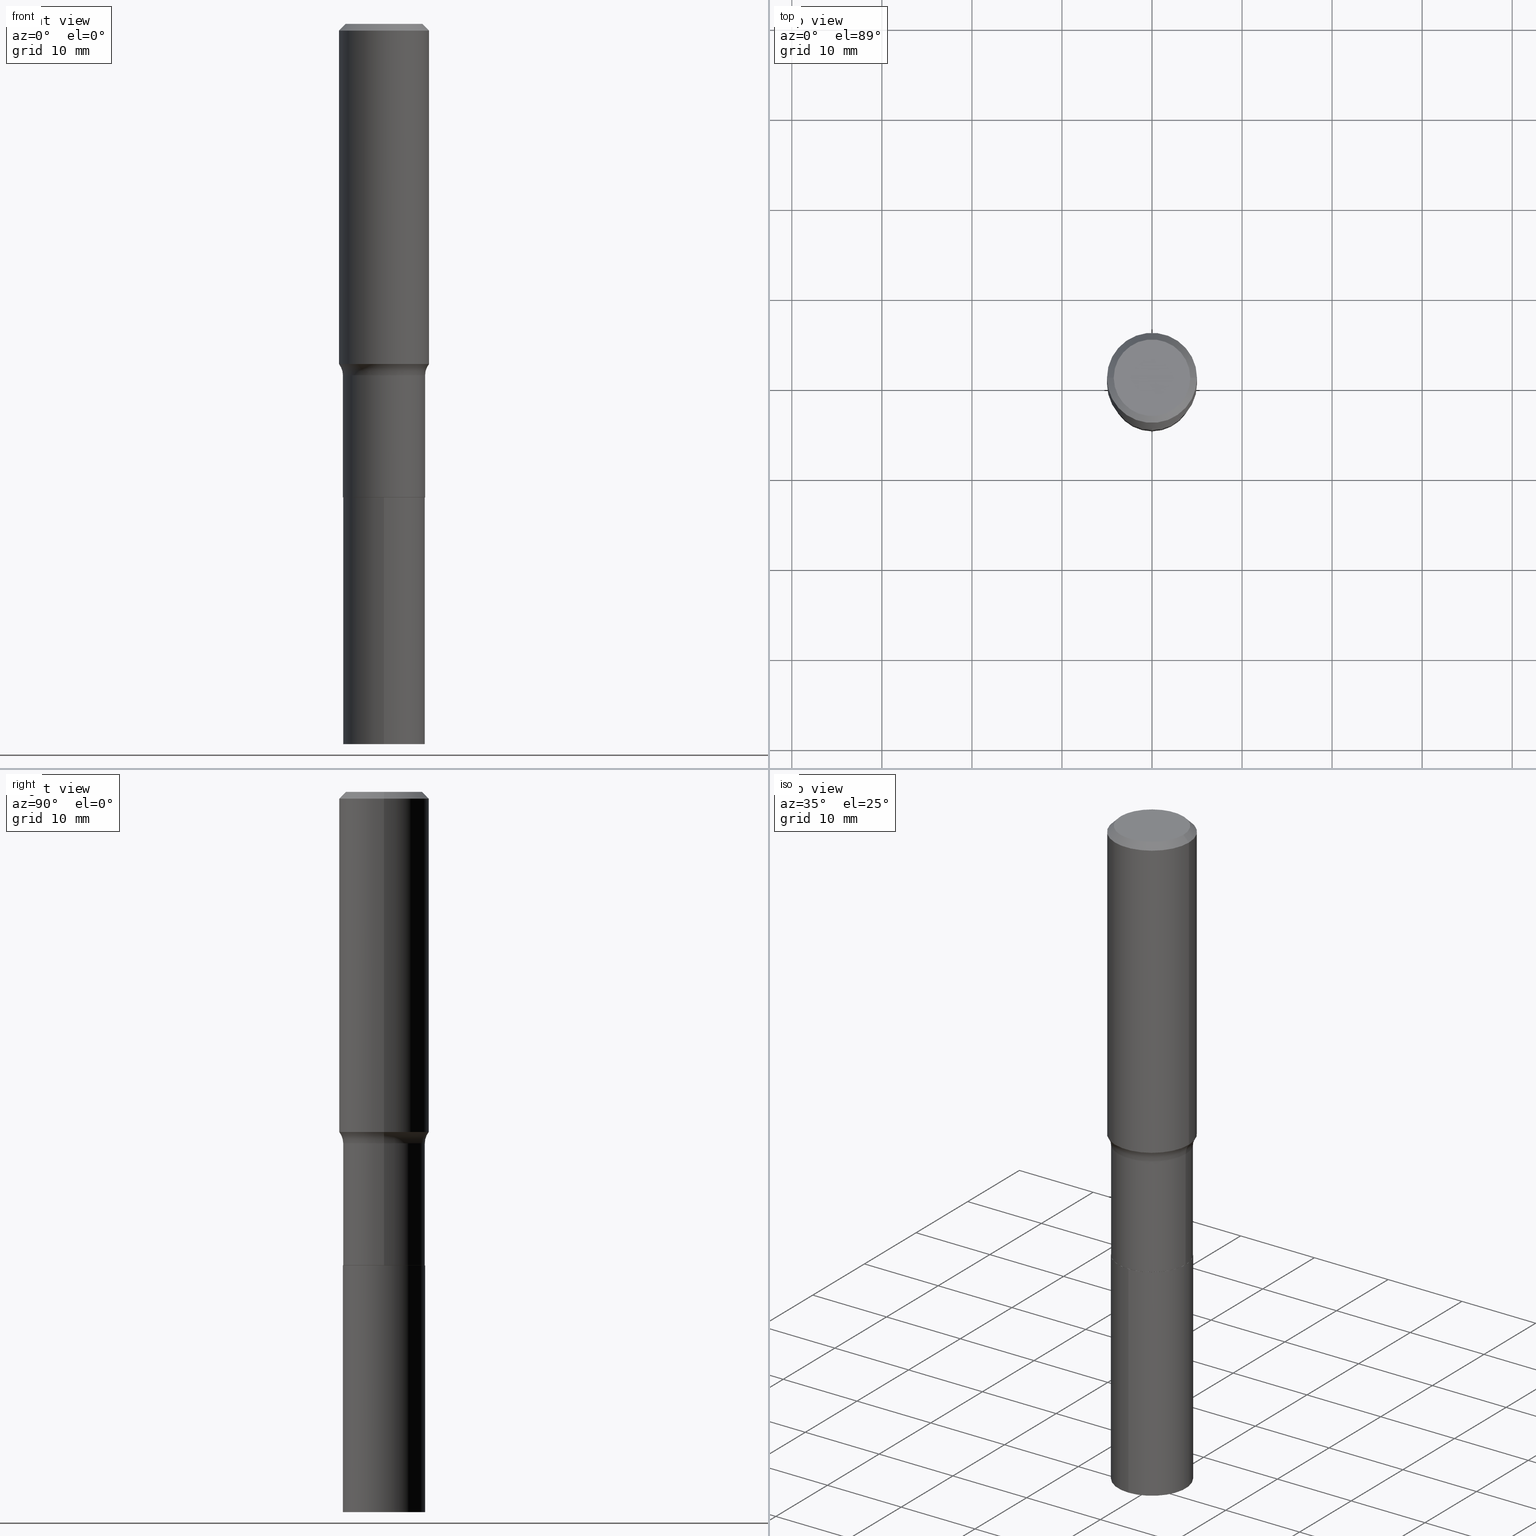
[diagram: canonical four-view strip — front | top / right | iso, engineering-drawing reading convention]
A machine part, canonical four-view strip (front | top / right | iso — engineering-drawing reading convention). The complete STEP part file that produces these views, byte-faithful:
ISO-10303-21;
HEADER;
FILE_DESCRIPTION (( 'STEP AP203' ),
    '1' );
FILE_NAME ('58833.STEP',
    '2024-04-19T14:44:11',
    ( '' ),
    ( '' ),
    'SwSTEP 2.0',
    'SolidWorks 2023',
    '' );
FILE_SCHEMA (( 'CONFIG_CONTROL_DESIGN' ));
ENDSEC;

DATA;
#1 = ORIENTED_EDGE ( 'NONE', *, *, #279, .F. ) ;
#2 = ORIENTED_EDGE ( 'NONE', *, *, #310, .T. ) ;
#3 = DIRECTION ( 'NONE',  ( 1.000000000000000000, -6.982962677686264344E-15, 0.000000000000000000 ) ) ;
#4 = EDGE_CURVE ( 'NONE', #69, #404, #242, .T. ) ;
#5 = AXIS2_PLACEMENT_3D ( 'NONE', #443, #333, #18 ) ;
#6 = AXIS2_PLACEMENT_3D ( 'NONE', #366, #77, #108 ) ;
#7 = CARTESIAN_POINT ( 'NONE',  ( 5.062364975683851674E-29, -7.227715519539197010E-15, -2.070100000000000051 ) ) ;
#8 = DATE_AND_TIME ( #332, #363 ) ;
#9 = DIRECTION ( 'NONE',  ( -2.445468806185136597E-29, 3.491481338843145583E-15, 1.000000000000000000 ) ) ;
#10 = ADVANCED_FACE ( 'NONE', ( #228 ), #344, .T. ) ;
#11 = CARTESIAN_POINT ( 'NONE',  ( 5.063587710086944476E-29, -7.229461260208617724E-15, -2.070600000000000218 ) ) ;
#12 = ORIENTED_EDGE ( 'NONE', *, *, #375, .T. ) ;
#13 = AXIS2_PLACEMENT_3D ( 'NONE', #74, #295, #326 ) ;
#14 = DIRECTION ( 'NONE',  ( -0.7071067811865957564, 7.493145998870527710E-15, 0.7071067811864992780 ) ) ;
#15 = DIRECTION ( 'NONE',  ( 1.000000000000000000, -6.982962677686264344E-15, 0.000000000000000000 ) ) ;
#16 = DIRECTION ( 'NONE',  ( -2.445468806185136877E-29, 3.491481338843145188E-15, 1.000000000000000000 ) ) ;
#17 = LINE ( 'NONE', #369, #177 ) ;
#18 = DIRECTION ( 'NONE',  ( 1.000000000000000000, -6.982962677686266711E-15, 0.000000000000000000 ) ) ;
#19 = CC_DESIGN_PERSON_AND_ORGANIZATION_ASSIGNMENT ( #173, #211, ( #121 ) ) ;
#20 = DIRECTION ( 'NONE',  ( 1.000000000000000000, -6.982962677686262766E-15, 0.000000000000000000 ) ) ;
#21 =( CONVERSION_BASED_UNIT ( 'INCH', #164 ) LENGTH_UNIT ( ) NAMED_UNIT ( #406 ) );
#22 = CYLINDRICAL_SURFACE ( 'NONE', #47, 0.1796999999999999431 ) ;
#23 = DIRECTION ( 'NONE',  ( -1.000000000000000000, 6.982962677686265922E-15, 0.000000000000000000 ) ) ;
#24 = VERTEX_POINT ( 'NONE', #201 ) ;
#25 = CIRCLE ( 'NONE', #244, 0.1796999999999999986 ) ;
#26 = LOCAL_TIME ( 10, 44, 11.00000000000000000, #422 ) ;
#27 = DIRECTION ( 'NONE',  ( -1.000000000000000000, 6.982962677686265922E-15, -4.876176775795935793E-29 ) ) ;
#28 = ADVANCED_FACE ( 'NONE', ( #52 ), #358, .T. ) ;
#29 = COORDINATED_UNIVERSAL_TIME_OFFSET ( 5, 0, .BEHIND. ) ;
#30 = ORIENTED_EDGE ( 'NONE', *, *, #451, .F. ) ;
#31 = APPROVAL ( #419, 'UNSPECIFIED' ) ;
#32 = DATE_TIME_ROLE ( 'creation_date' ) ;
#33 = DIRECTION ( 'NONE',  ( -2.445468806185136597E-29, 3.491481338843145583E-15, 1.000000000000000000 ) ) ;
#34 = AXIS2_PLACEMENT_3D ( 'NONE', #349, #169, #459 ) ;
#35 = VECTOR ( 'NONE', #416, 39.37007874015748854 ) ;
#36 = ORIENTED_EDGE ( 'NONE', *, *, #320, .F. ) ;
#37 = MANIFOLD_SOLID_BREP ( 'Body-Move/Copy2[1]', #450 ) ;
#38 = VERTEX_POINT ( 'NONE', #92 ) ;
#39 = ORIENTED_EDGE ( 'NONE', *, *, #167, .T. ) ;
#40 = CLOSED_SHELL ( 'NONE', ( #271, #453, #175, #307, #87, #82, #439, #424, #28, #41, #343, #10 ) ) ;
#41 = ADVANCED_FACE ( 'NONE', ( #266 ), #85, .F. ) ;
#42 = EDGE_CURVE ( 'NONE', #263, #128, #323, .T. ) ;
#43 = PLANE ( 'NONE',  #63 ) ;
#44 = DATE_TIME_ROLE ( 'classification_date' ) ;
#45 = LINE ( 'NONE', #337, #336 ) ;
#46 = ORIENTED_EDGE ( 'NONE', *, *, #163, .F. ) ;
#47 = AXIS2_PLACEMENT_3D ( 'NONE', #457, #127, #140 ) ;
#48 = LINE ( 'NONE', #257, #168 ) ;
#49 = AXIS2_PLACEMENT_3D ( 'NONE', #193, #331, #300 ) ;
#50 = CARTESIAN_POINT ( 'NONE',  ( 5.063587710086944476E-29, -7.229461260208617724E-15, -2.070600000000000218 ) ) ;
#51 = CARTESIAN_POINT ( 'NONE',  ( -0.1968500000000001082, 1.398703375343757985E-15, -9.682923725166787881E-30 ) ) ;
#52 = FACE_OUTER_BOUND ( 'NONE', #360, .T. ) ;
#53 = COORDINATED_UNIVERSAL_TIME_OFFSET ( 5, 0, .BEHIND. ) ;
#54 = CC_DESIGN_PERSON_AND_ORGANIZATION_ASSIGNMENT ( #355, #130, ( #345 ) ) ;
#55 = EDGE_CURVE ( 'NONE', #24, #263, #465, .T. ) ;
#56 = FACE_OUTER_BOUND ( 'NONE', #73, .T. ) ;
#57 = AXIS2_PLACEMENT_3D ( 'NONE', #219, #145, #438 ) ;
#58 = ORIENTED_EDGE ( 'NONE', *, *, #55, .F. ) ;
#59 =( LENGTH_UNIT ( ) NAMED_UNIT ( * ) SI_UNIT ( $, .METRE. ) );
#60 = ORIENTED_EDGE ( 'NONE', *, *, #279, .T. ) ;
#61 = DIRECTION ( 'NONE',  ( -2.445468806185136597E-29, 3.491481338843145583E-15, 1.000000000000000000 ) ) ;
#62 = ORIENTED_EDGE ( 'NONE', *, *, #88, .F. ) ;
#63 = AXIS2_PLACEMENT_3D ( 'NONE', #377, #227, #80 ) ;
#64 = CARTESIAN_POINT ( 'NONE',  ( -0.1796999999999999431, 1.276845296160899630E-15, -8.839326357188062782E-30 ) ) ;
#65 = APPROVAL_STATUS ( 'not_yet_approved' ) ;
#66 = PERSON_AND_ORGANIZATION_ROLE ( 'design_supplier' ) ;
#67 = VERTEX_POINT ( 'NONE', #250 ) ;
#68 = DIRECTION ( 'NONE',  ( -2.444718884993941855E-29, 3.492555268671800180E-15, 1.000000000000000000 ) ) ;
#69 = VERTEX_POINT ( 'NONE', #391 ) ;
#70 = FACE_OUTER_BOUND ( 'NONE', #204, .T. ) ;
#71 = ORIENTED_EDGE ( 'NONE', *, *, #365, .T. ) ;
#72 = CARTESIAN_POINT ( 'NONE',  ( 3.757951914464700156E-29, -5.365359373400262850E-15, -1.536700000000000399 ) ) ;
#73 = EDGE_LOOP ( 'NONE', ( #371, #415, #427, #30 ) ) ;
#74 = CARTESIAN_POINT ( 'NONE',  ( -0.2596999999999999864, -3.520079888631283158E-15, -1.536700000000000399 ) ) ;
#75 = CIRCLE ( 'NONE', #134, 0.07999999999999996003 ) ;
#76 = VECTOR ( 'NONE', #229, 39.37007874015748143 ) ;
#77 = DIRECTION ( 'NONE',  ( -2.445468806185136597E-29, 3.491481338843145583E-15, 1.000000000000000000 ) ) ;
#78 = DIRECTION ( 'NONE',  ( -6.982962677686266711E-15, -1.000000000000000000, 3.491481338843145583E-15 ) ) ;
#79 = DIRECTION ( 'NONE',  ( 1.000000000000000000, -6.982962677686266711E-15, 4.876176775795935793E-29 ) ) ;
#80 = DIRECTION ( 'NONE',  ( 6.982962677686265922E-15, 1.000000000000000000, -3.492555268671800180E-15 ) ) ;
#81 = DIRECTION ( 'NONE',  ( 1.000000000000000000, -6.982962677686267499E-15, 4.876294436782262290E-29 ) ) ;
#82 = ADVANCED_FACE ( 'NONE', ( #70 ), #22, .T. ) ;
#83 = DIRECTION ( 'NONE',  ( -2.445468806185136597E-29, 3.491481338843145583E-15, 1.000000000000000000 ) ) ;
#84 = CARTESIAN_POINT ( 'NONE',  ( 5.063587710086944476E-29, -7.229461260208617724E-15, -2.070600000000000218 ) ) ;
#85 = PLANE ( 'NONE',  #425 ) ;
#86 = CONICAL_SURFACE ( 'NONE', #91, 0.1968500000000000250, 0.7853981633974456145 ) ;
#87 = ADVANCED_FACE ( 'NONE', ( #329 ), #183, .T. ) ;
#88 = EDGE_CURVE ( 'NONE', #133, #24, #147, .T. ) ;
#89 =( NAMED_UNIT ( * ) PLANE_ANGLE_UNIT ( ) SI_UNIT ( $, .RADIAN. ) );
#90 = AXIS2_PLACEMENT_3D ( 'NONE', #421, #351, #206 ) ;
#91 = AXIS2_PLACEMENT_3D ( 'NONE', #347, #449, #23 ) ;
#92 = CARTESIAN_POINT ( 'NONE',  ( -0.1968500000000000250, -1.249116074655707760E-15, -0.02952750000000018207 ) ) ;
#93 = ORIENTED_EDGE ( 'NONE', *, *, #291, .F. ) ;
#94 = ORIENTED_EDGE ( 'NONE', *, *, #296, .T. ) ;
#95 = APPROVAL_ROLE ( '' ) ;
#96 = VERTEX_POINT ( 'NONE', #138 ) ;
#97 = EDGE_CURVE ( 'NONE', #263, #24, #315, .T. ) ;
#98 = VECTOR ( 'NONE', #131, 39.37007874015748143 ) ;
#99 = CIRCLE ( 'NONE', #232, 0.1968500000000000250 ) ;
#100 = PERSON_AND_ORGANIZATION ( #272, #410 ) ;
#101 = EDGE_LOOP ( 'NONE', ( #248, #423, #312, #380 ) ) ;
#102 = CARTESIAN_POINT ( 'NONE',  ( 0.000000000000000000, 0.000000000000000000, 0.000000000000000000 ) ) ;
#103 = ORIENTED_EDGE ( 'NONE', *, *, #172, .F. ) ;
#104 = CC_DESIGN_PERSON_AND_ORGANIZATION_ASSIGNMENT ( #384, #278, ( #285 ) ) ;
#105 = ORIENTED_EDGE ( 'NONE', *, *, #210, .T. ) ;
#106 = ORIENTED_EDGE ( 'NONE', *, *, #97, .T. ) ;
#107 = LINE ( 'NONE', #226, #282 ) ;
#108 = DIRECTION ( 'NONE',  ( 1.000000000000000000, -6.982962677686264344E-15, 0.000000000000000000 ) ) ;
#109 = DIRECTION ( 'NONE',  ( 0.7071067811865957564, -2.468850131082761932E-15, 0.7071067811864992780 ) ) ;
#110 = PRODUCT_DEFINITION_SHAPE ( 'NONE', 'NONE',  #285 ) ;
#111 = APPLICATION_CONTEXT ( 'configuration controlled 3d designs of mechanical parts and assemblies' ) ;
#112 = VECTOR ( 'NONE', #117, 39.37007874015748143 ) ;
#113 = CC_DESIGN_APPROVAL ( #267, ( #345 ) ) ;
#114 = CARTESIAN_POINT ( 'NONE',  ( 0.000000000000000000, 0.000000000000000000, 0.000000000000000000 ) ) ;
#115 = CARTESIAN_POINT ( 'NONE',  ( 5.063587710086944476E-29, -7.229461260208617724E-15, -2.070600000000000218 ) ) ;
#116 = DIRECTION ( 'NONE',  ( 1.000000000000000000, -6.982962677686265922E-15, 4.876176775795935793E-29 ) ) ;
#117 = DIRECTION ( 'NONE',  ( -2.445468806185136877E-29, 3.491481338843145188E-15, 1.000000000000000000 ) ) ;
#118 = CC_DESIGN_DATE_AND_TIME_ASSIGNMENT ( #223, #44, ( #345 ) ) ;
#119 = CARTESIAN_POINT ( 'NONE',  ( -0.1673224999999999851, 1.219954130253505263E-15, 4.096137381439757534E-18 ) ) ;
#120 = CIRCLE ( 'NONE', #382, 0.1796999999999999986 ) ;
#121 = PRODUCT_DEFINITION_FORMATION_WITH_SPECIFIED_SOURCE ( 'ANY', '', #159, .NOT_KNOWN. ) ;
#122 = ADVANCED_FACE ( 'NONE', ( #357 ), #430, .T. ) ;
#123 = EDGE_LOOP ( 'NONE', ( #325, #46 ) ) ;
#124 = AXIS2_PLACEMENT_3D ( 'NONE', #50, #299, #409 ) ;
#125 = AXIS2_PLACEMENT_3D ( 'NONE', #308, #9, #148 ) ;
#126 = VERTEX_POINT ( 'NONE', #190 ) ;
#127 = DIRECTION ( 'NONE',  ( -2.445468806185136597E-29, 3.491481338843145583E-15, 1.000000000000000000 ) ) ;
#128 = VERTEX_POINT ( 'NONE', #297 ) ;
#129 = CC_DESIGN_PERSON_AND_ORGANIZATION_ASSIGNMENT ( #100, #66, ( #121 ) ) ;
#130 = PERSON_AND_ORGANIZATION_ROLE ( 'classification_officer' ) ;
#131 = DIRECTION ( 'NONE',  ( -2.445468806185136877E-29, 3.491481338843145188E-15, 1.000000000000000000 ) ) ;
#132 = CALENDAR_DATE ( 2024, 19, 4 ) ;
#133 = VERTEX_POINT ( 'NONE', #149 ) ;
#134 = AXIS2_PLACEMENT_3D ( 'NONE', #370, #78, #20 ) ;
#135 = DIRECTION ( 'NONE',  ( 1.000000000000000000, -6.982962677686269077E-15, 0.000000000000000000 ) ) ;
#136 = ORIENTED_EDGE ( 'NONE', *, *, #258, .F. ) ;
#137 = CARTESIAN_POINT ( 'NONE',  ( 1.276845296160963528E-15, 0.1796999999999890074, -3.149600000000001288 ) ) ;
#138 = CARTESIAN_POINT ( 'NONE',  ( 0.1796999999999999431, -6.620197766580484580E-15, -1.536700000000000399 ) ) ;
#139 = EDGE_LOOP ( 'NONE', ( #385, #461, #317, #283 ) ) ;
#140 = DIRECTION ( 'NONE',  ( 1.000000000000000000, -6.982962677686265922E-15, 4.876176775795935232E-29 ) ) ;
#141 = DIRECTION ( 'NONE',  ( 1.000000000000000000, -6.982962677686265922E-15, 4.876176775795935232E-29 ) ) ;
#142 = EDGE_LOOP ( 'NONE', ( #389, #241, #105, #136 ) ) ;
#143 = LINE ( 'NONE', #467, #417 ) ;
#144 = CIRCLE ( 'NONE', #13, 0.07999999999999996003 ) ;
#145 = DIRECTION ( 'NONE',  ( -2.445468806185136597E-29, 3.491481338843145583E-15, 1.000000000000000000 ) ) ;
#146 = CC_DESIGN_APPROVAL ( #31, ( #285 ) ) ;
#147 = LINE ( 'NONE', #288, #231 ) ;
#148 = DIRECTION ( 'NONE',  ( 1.000000000000000000, -6.982962677686267499E-15, 4.876294436782262290E-29 ) ) ;
#149 = CARTESIAN_POINT ( 'NONE',  ( 0.1791999999999999982, -8.480808172049995659E-15, -2.070600000000000218 ) ) ;
#150 = CARTESIAN_POINT ( 'NONE',  ( 1.276845296160950511E-15, 0.1796999999999927544, -2.070600000000000662 ) ) ;
#151 = PERSON_AND_ORGANIZATION ( #272, #410 ) ;
#152 = DIRECTION ( 'NONE',  ( -2.444718884993941855E-29, 3.492555268671800180E-15, 1.000000000000000000 ) ) ;
#153 = AXIS2_PLACEMENT_3D ( 'NONE', #11, #152, #265 ) ;
#154 = ORIENTED_EDGE ( 'NONE', *, *, #310, .F. ) ;
#155 = CARTESIAN_POINT ( 'NONE',  ( -0.1796999999999999709, -5.019692150308829314E-15, -2.070100000000000051 ) ) ;
#156 = FACE_OUTER_BOUND ( 'NONE', #139, .T. ) ;
#157 = DIRECTION ( 'NONE',  ( -2.445468806185136597E-29, 3.491481338843145583E-15, 1.000000000000000000 ) ) ;
#158 = CARTESIAN_POINT ( 'NONE',  ( -1.254838393180145014E-15, -0.1797000000000109898, -3.149600000000000399 ) ) ;
#159 = PRODUCT ( '58833', '58833', '', ( #207 ) ) ;
#160 = FACE_OUTER_BOUND ( 'NONE', #252, .T. ) ;
#161 = DESIGN_CONTEXT ( 'detailed design', #111, 'design' ) ;
#162 = CIRCLE ( 'NONE', #379, 0.1791999999999999982 ) ;
#163 = EDGE_CURVE ( 'NONE', #322, #304, #25, .T. ) ;
#164 = LENGTH_MEASURE_WITH_UNIT ( LENGTH_MEASURE( 0.02539999999999999897 ), #59 );
#165 = FACE_OUTER_BOUND ( 'NONE', #356, .T. ) ;
#166 = DIRECTION ( 'NONE',  ( 1.000000000000000000, 0.000000000000000000, 0.000000000000000000 ) ) ;
#167 = EDGE_CURVE ( 'NONE', #304, #322, #455, .T. ) ;
#168 = VECTOR ( 'NONE', #16, 39.37007874015748143 ) ;
#169 = DIRECTION ( 'NONE',  ( -2.445468806185136597E-29, 3.491481338843145583E-15, 1.000000000000000000 ) ) ;
#170 = CARTESIAN_POINT ( 'NONE',  ( -0.1968500000000000250, 1.271501487869850120E-15, -0.02952750000000018207 ) ) ;
#171 = ORIENTED_EDGE ( 'NONE', *, *, #367, .T. ) ;
#172 = EDGE_CURVE ( 'NONE', #128, #96, #293, .T. ) ;
#173 = PERSON_AND_ORGANIZATION ( #272, #410 ) ;
#174 = ORIENTED_EDGE ( 'NONE', *, *, #42, .T. ) ;
#175 = ADVANCED_FACE ( 'NONE', ( #390 ), #400, .T. ) ;
#176 = EDGE_LOOP ( 'NONE', ( #255, #429 ) ) ;
#177 = VECTOR ( 'NONE', #412, 39.37007874015748854 ) ;
#178 = CARTESIAN_POINT ( 'NONE',  ( 7.701439386995408199E-29, -1.099792839510549152E-14, -3.149600000000000843 ) ) ;
#179 = VERTEX_POINT ( 'NONE', #215 ) ;
#180 = ORIENTED_EDGE ( 'NONE', *, *, #212, .T. ) ;
#181 = DIRECTION ( 'NONE',  ( 1.000000000000000000, -6.982962677686264344E-15, 0.000000000000000000 ) ) ;
#182 = EDGE_CURVE ( 'NONE', #179, #128, #144, .T. ) ;
#183 = CYLINDRICAL_SURFACE ( 'NONE', #433, 0.1796999999999999431 ) ;
#184 = MANIFOLD_SOLID_BREP ( 'Body-Move/Copy2[2]', #40 ) ;
#185 = CARTESIAN_POINT ( 'NONE',  ( 5.063587710086944476E-29, -7.229461260208617724E-15, -2.070600000000000218 ) ) ;
#186 = AXIS2_PLACEMENT_3D ( 'NONE', #178, #361, #256 ) ;
#187 = DIRECTION ( 'NONE',  ( -6.982962677686265922E-15, -1.000000000000000000, 3.040454083098790380E-15 ) ) ;
#188 = PRODUCT_RELATED_PRODUCT_CATEGORY ( 'detail', '', ( #159 ) ) ;
#189 = CARTESIAN_POINT ( 'NONE',  ( -1.254838393180171243E-15, -0.1797000000000072428, -2.070599999999999330 ) ) ;
#190 = CARTESIAN_POINT ( 'NONE',  ( 0.1968500000000000250, -1.477690918335233294E-15, -0.02952750000000018207 ) ) ;
#191 = PLANE ( 'NONE',  #49 ) ;
#192 = VERTEX_POINT ( 'NONE', #436 ) ;
#193 = CARTESIAN_POINT ( 'NONE',  ( 1.015213930624361938E-29, -2.057298380494832584E-14, -3.149600000000000843 ) ) ;
#194 = CC_DESIGN_PERSON_AND_ORGANIZATION_ASSIGNMENT ( #311, #269, ( #159 ) ) ;
#195 = CYLINDRICAL_SURFACE ( 'NONE', #153, 0.1796999999999999986 ) ;
#196 = AXIS2_PLACEMENT_3D ( 'NONE', #114, #261, #79 ) ;
#197 = CARTESIAN_POINT ( 'NONE',  ( 5.063587710086944476E-29, -7.229461260208617724E-15, -2.070600000000000218 ) ) ;
#198 = CARTESIAN_POINT ( 'NONE',  ( 0.1968500000000001360, -6.567140387868782202E-15, -1.487203762769277127 ) ) ;
#199 = APPROVAL_DATE_TIME ( #8, #267 ) ;
#200 = FACE_OUTER_BOUND ( 'NONE', #319, .T. ) ;
#201 = CARTESIAN_POINT ( 'NONE',  ( 0.1796999999999999709, -8.482553912719417951E-15, -2.070100000000000051 ) ) ;
#202 = CIRCLE ( 'NONE', #5, 0.1968500000000001915 ) ;
#203 =( GEOMETRIC_REPRESENTATION_CONTEXT ( 3 ) GLOBAL_UNCERTAINTY_ASSIGNED_CONTEXT ( ( #234 ) ) GLOBAL_UNIT_ASSIGNED_CONTEXT ( ( #21, #89, #268 ) ) REPRESENTATION_CONTEXT ( 'NONE', 'WORKASPACE' ) );
#204 = EDGE_LOOP ( 'NONE', ( #466, #106, #290, #103 ) ) ;
#205 = DIRECTION ( 'NONE',  ( 2.445468806185136597E-29, -3.491481338843145583E-15, -1.000000000000000000 ) ) ;
#206 = DIRECTION ( 'NONE',  ( -6.982962677686265922E-15, -1.000000000000000000, 3.040454083098790380E-15 ) ) ;
#207 = MECHANICAL_CONTEXT ( 'NONE', #348, 'mechanical' ) ;
#208 = AXIS2_PLACEMENT_3D ( 'NONE', #7, #432, #217 ) ;
#209 = AXIS2_PLACEMENT_3D ( 'NONE', #298, #83, #340 ) ;
#210 = EDGE_CURVE ( 'NONE', #304, #396, #107, .T. ) ;
#211 = PERSON_AND_ORGANIZATION_ROLE ( 'creator' ) ;
#212 = EDGE_CURVE ( 'NONE', #179, #280, #202, .T. ) ;
#213 = SECURITY_CLASSIFICATION_LEVEL ( 'unclassified' ) ;
#214 = ORIENTED_EDGE ( 'NONE', *, *, #381, .T. ) ;
#215 = CARTESIAN_POINT ( 'NONE',  ( -0.1968500000000001360, -3.793840809422482017E-15, -1.487203762769277127 ) ) ;
#216 = AXIS2_PLACEMENT_3D ( 'NONE', #185, #445, #116 ) ;
#217 = DIRECTION ( 'NONE',  ( 1.000000000000000000, -6.982962677686269077E-15, 0.000000000000000000 ) ) ;
#218 = ORIENTED_EDGE ( 'NONE', *, *, #352, .F. ) ;
#219 = CARTESIAN_POINT ( 'NONE',  ( 0.000000000000000000, 0.000000000000000000, 0.000000000000000000 ) ) ;
#220 = ORIENTED_EDGE ( 'NONE', *, *, #451, .T. ) ;
#221 = FACE_OUTER_BOUND ( 'NONE', #176, .T. ) ;
#222 = ADVANCED_FACE ( 'NONE', ( #160 ), #43, .F. ) ;
#223 = DATE_AND_TIME ( #374, #303 ) ;
#224 = AXIS2_PLACEMENT_3D ( 'NONE', #444, #246, #81 ) ;
#225 = AXIS2_PLACEMENT_3D ( 'NONE', #376, #205, #313 ) ;
#226 = CARTESIAN_POINT ( 'NONE',  ( -1.254838393180171243E-15, -0.1797000000000072428, -2.070599999999999330 ) ) ;
#227 = DIRECTION ( 'NONE',  ( 2.444718884993941295E-29, -3.492555268671800180E-15, -1.000000000000000000 ) ) ;
#228 = FACE_OUTER_BOUND ( 'NONE', #101, .T. ) ;
#229 = DIRECTION ( 'NONE',  ( -2.444718884993941575E-29, 3.492555268671800180E-15, 1.000000000000000000 ) ) ;
#230 = DIRECTION ( 'NONE',  ( -2.445468806185136597E-29, 3.491481338843145583E-15, 1.000000000000000000 ) ) ;
#231 = VECTOR ( 'NONE', #109, 39.37007874015748143 ) ;
#232 = AXIS2_PLACEMENT_3D ( 'NONE', #368, #61, #350 ) ;
#233 = CARTESIAN_POINT ( 'NONE',  ( -5.008488096090108951E-47, 7.150793614331948590E-33, 2.048068690724054183E-18 ) ) ;
#234 = UNCERTAINTY_MEASURE_WITH_UNIT (LENGTH_MEASURE( 1.000000000000000082E-05 ), #21, 'distance_accuracy_value', 'NONE');
#235 = ORIENTED_EDGE ( 'NONE', *, *, #365, .F. ) ;
#236 = CIRCLE ( 'NONE', #124, 0.1791999999999999982 ) ;
#237 = CARTESIAN_POINT ( 'NONE',  ( 0.000000000000000000, 0.000000000000000000, 0.000000000000000000 ) ) ;
#238 = EDGE_CURVE ( 'NONE', #280, #96, #75, .T. ) ;
#239 = DIRECTION ( 'NONE',  ( 1.000000000000000000, -6.982962677686268288E-15, 4.883557194083114022E-29 ) ) ;
#240 = ORIENTED_EDGE ( 'NONE', *, *, #260, .T. ) ;
#241 = ORIENTED_EDGE ( 'NONE', *, *, #163, .T. ) ;
#242 = CIRCLE ( 'NONE', #224, 0.1673224999999999851 ) ;
#243 = APPROVAL_DATE_TIME ( #462, #31 ) ;
#244 = AXIS2_PLACEMENT_3D ( 'NONE', #247, #68, #187 ) ;
#245 = CALENDAR_DATE ( 2024, 19, 4 ) ;
#246 = DIRECTION ( 'NONE',  ( -2.445468806185136597E-29, 3.491481338843145583E-15, 1.000000000000000000 ) ) ;
#247 = CARTESIAN_POINT ( 'NONE',  ( 7.701439386995408199E-29, -1.099792839510549152E-14, -3.149600000000000843 ) ) ;
#248 = ORIENTED_EDGE ( 'NONE', *, *, #260, .F. ) ;
#249 = CARTESIAN_POINT ( 'NONE',  ( 5.063587710086944476E-29, -7.229461260208617724E-15, -2.070600000000000218 ) ) ;
#250 = CARTESIAN_POINT ( 'NONE',  ( 1.276845296160976938E-15, 0.1796999999999927544, -2.070600000000000662 ) ) ;
#251 = ADVANCED_FACE ( 'NONE', ( #165 ), #195, .T. ) ;
#252 = EDGE_LOOP ( 'NONE', ( #2, #458 ) ) ;
#253 = TOROIDAL_SURFACE ( 'NONE', #34, 0.2596999999999999864, 0.07999999999999998779 ) ;
#254 = DIRECTION ( 'NONE',  ( -2.444718884993941855E-29, 3.492555268671800180E-15, 1.000000000000000000 ) ) ;
#255 = ORIENTED_EDGE ( 'NONE', *, *, #296, .F. ) ;
#256 = DIRECTION ( 'NONE',  ( -6.982962677686265922E-15, -1.000000000000000000, 3.040454083098790380E-15 ) ) ;
#257 = CARTESIAN_POINT ( 'NONE',  ( 0.1968500000000001082, -1.374596203102542397E-15, 9.598753983154305062E-30 ) ) ;
#258 = EDGE_CURVE ( 'NONE', #67, #396, #120, .T. ) ;
#259 = AXIS2_PLACEMENT_3D ( 'NONE', #464, #289, #135 ) ;
#260 = EDGE_CURVE ( 'NONE', #192, #263, #45, .T. ) ;
#261 = DIRECTION ( 'NONE',  ( -2.445468806185136597E-29, 3.491481338843145583E-15, 1.000000000000000000 ) ) ;
#262 = DIRECTION ( 'NONE',  ( -2.444718884993941855E-29, 3.492555268671800180E-15, 1.000000000000000000 ) ) ;
#263 = VERTEX_POINT ( 'NONE', #155 ) ;
#264 = DIRECTION ( 'NONE',  ( -2.445468806185136597E-29, 3.491481338843145583E-15, 1.000000000000000000 ) ) ;
#265 = DIRECTION ( 'NONE',  ( -6.982962677686265922E-15, -1.000000000000000000, 3.040454083098790380E-15 ) ) ;
#266 = FACE_OUTER_BOUND ( 'NONE', #420, .T. ) ;
#267 = APPROVAL ( #402, 'UNSPECIFIED' ) ;
#268 =( NAMED_UNIT ( * ) SI_UNIT ( $, .STERADIAN. ) SOLID_ANGLE_UNIT ( ) );
#269 = PERSON_AND_ORGANIZATION_ROLE ( 'design_owner' ) ;
#270 = ORIENTED_EDGE ( 'NONE', *, *, #354, .T. ) ;
#271 = ADVANCED_FACE ( 'NONE', ( #305 ), #309, .T. ) ;
#272 = PERSON ( 'UNSPECIFIED', 'UNSPECIFIED', 'UNSPECIFIED', ('UNSPECIFIED'), ('UNSPECIFIED'), ('UNSPECIFIED') ) ;
#273 = CIRCLE ( 'NONE', #125, 0.1673224999999999851 ) ;
#274 = PERSON_AND_ORGANIZATION ( #272, #410 ) ;
#275 = AXIS2_PLACEMENT_3D ( 'NONE', #306, #264, #405 ) ;
#276 = ORIENTED_EDGE ( 'NONE', *, *, #182, .F. ) ;
#277 = EDGE_LOOP ( 'NONE', ( #431, #174, #435, #36 ) ) ;
#278 = PERSON_AND_ORGANIZATION_ROLE ( 'creator' ) ;
#279 = EDGE_CURVE ( 'NONE', #179, #38, #446, .T. ) ;
#280 = VERTEX_POINT ( 'NONE', #198 ) ;
#281 = PERSON_AND_ORGANIZATION ( #272, #410 ) ;
#282 = VECTOR ( 'NONE', #364, 39.37007874015748143 ) ;
#283 = ORIENTED_EDGE ( 'NONE', *, *, #238, .F. ) ;
#284 = PLANE ( 'NONE',  #216 ) ;
#285 = PRODUCT_DEFINITION ( 'UNKNOWN', '', #121, #161 ) ;
#286 = ORIENTED_EDGE ( 'NONE', *, *, #238, .T. ) ;
#287 = EDGE_CURVE ( 'NONE', #192, #133, #162, .T. ) ;
#288 = CARTESIAN_POINT ( 'NONE',  ( 0.1791999999999999982, -8.480808172049995659E-15, -2.070600000000000218 ) ) ;
#289 = DIRECTION ( 'NONE',  ( -2.445468806185136597E-29, 3.491481338843145583E-15, 1.000000000000000000 ) ) ;
#290 = ORIENTED_EDGE ( 'NONE', *, *, #320, .T. ) ;
#291 = EDGE_CURVE ( 'NONE', #69, #126, #17, .T. ) ;
#292 = ORIENTED_EDGE ( 'NONE', *, *, #381, .F. ) ;
#293 = CIRCLE ( 'NONE', #441, 0.1796999999999999431 ) ;
#294 = CIRCLE ( 'NONE', #209, 0.1968500000000000250 ) ;
#295 = DIRECTION ( 'NONE',  ( 7.105427357601001859E-15, 1.000000000000000000, -3.491481338843145583E-15 ) ) ;
#296 = EDGE_CURVE ( 'NONE', #133, #192, #236, .T. ) ;
#297 = CARTESIAN_POINT ( 'NONE',  ( -0.1796999999999999431, -5.019692150308830103E-15, -1.536700000000000399 ) ) ;
#298 = CARTESIAN_POINT ( 'NONE',  ( 7.220858017463206858E-31, -1.030947152326916240E-16, -0.02952750000000018207 ) ) ;
#299 = DIRECTION ( 'NONE',  ( -2.445468806185136597E-29, 3.491481338843145583E-15, 1.000000000000000000 ) ) ;
#300 = DIRECTION ( 'NONE',  ( -6.982962677686265922E-15, -1.000000000000000000, 3.492555268671800180E-15 ) ) ;
#301 = SHAPE_DEFINITION_REPRESENTATION ( #110, #468 ) ;
#302 = CIRCLE ( 'NONE', #90, 0.1796999999999999986 ) ;
#303 = LOCAL_TIME ( 10, 44, 11.00000000000000000, #342 ) ;
#304 = VERTEX_POINT ( 'NONE', #158 ) ;
#305 = FACE_OUTER_BOUND ( 'NONE', #359, .T. ) ;
#306 = CARTESIAN_POINT ( 'NONE',  ( 3.636910410293427302E-29, -5.192544184766240594E-15, -1.487203762769277127 ) ) ;
#307 = ADVANCED_FACE ( 'NONE', ( #156 ), #253, .F. ) ;
#308 = CARTESIAN_POINT ( 'NONE',  ( -1.001697619218021790E-46, 1.430158722866389718E-32, 4.096137381448108366E-18 ) ) ;
#309 = CONICAL_SURFACE ( 'NONE', #324, 0.1791999999999999982, 0.7853981633975165577 ) ;
#310 = EDGE_CURVE ( 'NONE', #396, #67, #302, .T. ) ;
#311 = PERSON_AND_ORGANIZATION ( #272, #410 ) ;
#312 = ORIENTED_EDGE ( 'NONE', *, *, #88, .T. ) ;
#313 = DIRECTION ( 'NONE',  ( -1.000000000000000000, 6.982962677686265922E-15, 0.000000000000000000 ) ) ;
#314 = APPLICATION_PROTOCOL_DEFINITION ( 'international standard', 'config_control_design', 1994, #348 ) ;
#315 = CIRCLE ( 'NONE', #208, 0.1796999999999999709 ) ;
#316 = APPROVAL_PERSON_ORGANIZATION ( #151, #267, #399 ) ;
#317 = ORIENTED_EDGE ( 'NONE', *, *, #172, .T. ) ;
#318 = DATE_AND_TIME ( #353, #26 ) ;
#319 = EDGE_LOOP ( 'NONE', ( #276, #235, #286, #270 ) ) ;
#320 = EDGE_CURVE ( 'NONE', #24, #96, #143, .T. ) ;
#321 = COORDINATED_UNIVERSAL_TIME_OFFSET ( 5, 0, .BEHIND. ) ;
#322 = VERTEX_POINT ( 'NONE', #137 ) ;
#323 = LINE ( 'NONE', #64, #98 ) ;
#324 = AXIS2_PLACEMENT_3D ( 'NONE', #84, #230, #448 ) ;
#325 = ORIENTED_EDGE ( 'NONE', *, *, #167, .F. ) ;
#326 = DIRECTION ( 'NONE',  ( -1.000000000000000000, 7.105427357601001859E-15, 0.000000000000000000 ) ) ;
#327 = ORIENTED_EDGE ( 'NONE', *, *, #210, .F. ) ;
#328 = EDGE_LOOP ( 'NONE', ( #71, #60, #394, #292 ) ) ;
#329 = FACE_OUTER_BOUND ( 'NONE', #277, .T. ) ;
#330 = LOCAL_TIME ( 10, 44, 11.00000000000000000, #321 ) ;
#331 = DIRECTION ( 'NONE',  ( -2.444718884993941295E-29, 3.492555268671800180E-15, 1.000000000000000000 ) ) ;
#332 = CALENDAR_DATE ( 2024, 19, 4 ) ;
#333 = DIRECTION ( 'NONE',  ( -2.445468806185136597E-29, 3.491481338843145583E-15, 1.000000000000000000 ) ) ;
#334 = ORIENTED_EDGE ( 'NONE', *, *, #367, .F. ) ;
#335 = CIRCLE ( 'NONE', #6, 0.1796999999999999431 ) ;
#336 = VECTOR ( 'NONE', #14, 39.37007874015748143 ) ;
#337 = CARTESIAN_POINT ( 'NONE',  ( -0.1791999999999999982, -5.956168677726518796E-15, -2.070600000000000218 ) ) ;
#338 = CIRCLE ( 'NONE', #275, 0.1968500000000001915 ) ;
#339 = ORIENTED_EDGE ( 'NONE', *, *, #352, .T. ) ;
#340 = DIRECTION ( 'NONE',  ( 1.000000000000000000, -6.982962677686265922E-15, 0.000000000000000000 ) ) ;
#341 = CARTESIAN_POINT ( 'NONE',  ( 5.063587710086944476E-29, -7.229461260208617724E-15, -2.070600000000000218 ) ) ;
#342 = COORDINATED_UNIVERSAL_TIME_OFFSET ( 5, 0, .BEHIND. ) ;
#343 = ADVANCED_FACE ( 'NONE', ( #221 ), #284, .F. ) ;
#344 = CONICAL_SURFACE ( 'NONE', #408, 0.1791999999999999982, 0.7853981633975165577 ) ;
#345 = SECURITY_CLASSIFICATION ( '', '', #213 ) ;
#346 = LINE ( 'NONE', #170, #35 ) ;
#347 = CARTESIAN_POINT ( 'NONE',  ( 7.220858017463206858E-31, -1.030947152326916240E-16, -0.02952750000000018207 ) ) ;
#348 = APPLICATION_CONTEXT ( 'configuration controlled 3d designs of mechanical parts and assemblies' ) ;
#349 = CARTESIAN_POINT ( 'NONE',  ( 3.757951914464700156E-29, -5.365359373400262850E-15, -1.536700000000000399 ) ) ;
#350 = DIRECTION ( 'NONE',  ( 1.000000000000000000, -6.982962677686265922E-15, 0.000000000000000000 ) ) ;
#351 = DIRECTION ( 'NONE',  ( -2.444718884993941855E-29, 3.492555268671800180E-15, 1.000000000000000000 ) ) ;
#352 = EDGE_CURVE ( 'NONE', #404, #69, #273, .T. ) ;
#353 = CALENDAR_DATE ( 2024, 19, 4 ) ;
#354 = EDGE_CURVE ( 'NONE', #96, #128, #335, .T. ) ;
#355 = PERSON_AND_ORGANIZATION ( #272, #410 ) ;
#356 = EDGE_LOOP ( 'NONE', ( #39, #12, #154, #327 ) ) ;
#357 = FACE_OUTER_BOUND ( 'NONE', #142, .T. ) ;
#358 = CONICAL_SURFACE ( 'NONE', #225, 0.1968500000000000250, 0.7853981633974456145 ) ;
#359 = EDGE_LOOP ( 'NONE', ( #94, #240, #58, #62 ) ) ;
#360 = EDGE_LOOP ( 'NONE', ( #93, #218, #220, #171 ) ) ;
#361 = DIRECTION ( 'NONE',  ( -2.444718884993941855E-29, 3.492555268671800180E-15, 1.000000000000000000 ) ) ;
#362 = EDGE_LOOP ( 'NONE', ( #1, #180, #214, #334 ) ) ;
#363 = LOCAL_TIME ( 10, 44, 11.00000000000000000, #53 ) ;
#364 = DIRECTION ( 'NONE',  ( -2.444718884993941575E-29, 3.492555268671800180E-15, 1.000000000000000000 ) ) ;
#365 = EDGE_CURVE ( 'NONE', #280, #179, #338, .T. ) ;
#366 = CARTESIAN_POINT ( 'NONE',  ( 3.757951914464700156E-29, -5.365359373400262850E-15, -1.536700000000000399 ) ) ;
#367 = EDGE_CURVE ( 'NONE', #38, #126, #294, .T. ) ;
#368 = CARTESIAN_POINT ( 'NONE',  ( 7.220858017463206858E-31, -1.030947152326916240E-16, -0.02952750000000018207 ) ) ;
#369 = CARTESIAN_POINT ( 'NONE',  ( 0.1968500000000000250, -1.453583746094017706E-15, -0.02952750000000018207 ) ) ;
#370 = CARTESIAN_POINT ( 'NONE',  ( 0.2596999999999999864, -7.178834780795387021E-15, -1.536700000000000399 ) ) ;
#371 = ORIENTED_EDGE ( 'NONE', *, *, #4, .F. ) ;
#372 = TOROIDAL_SURFACE ( 'NONE', #456, 0.2596999999999999864, 0.07999999999999998779 ) ;
#373 = DIRECTION ( 'NONE',  ( 2.438088387897960049E-29, -3.491481338843145188E-15, -1.000000000000000000 ) ) ;
#374 = CALENDAR_DATE ( 2024, 19, 4 ) ;
#375 = EDGE_CURVE ( 'NONE', #322, #67, #447, .T. ) ;
#376 = CARTESIAN_POINT ( 'NONE',  ( 7.220858017463206858E-31, -1.030947152326916240E-16, -0.02952750000000018207 ) ) ;
#377 = CARTESIAN_POINT ( 'NONE',  ( 5.063587710086944476E-29, -7.229461260208617724E-15, -2.070600000000000218 ) ) ;
#378 = CC_DESIGN_DATE_AND_TIME_ASSIGNMENT ( #318, #32, ( #285 ) ) ;
#379 = AXIS2_PLACEMENT_3D ( 'NONE', #341, #157, #181 ) ;
#380 = ORIENTED_EDGE ( 'NONE', *, *, #97, .F. ) ;
#381 = EDGE_CURVE ( 'NONE', #280, #126, #48, .T. ) ;
#382 = AXIS2_PLACEMENT_3D ( 'NONE', #115, #262, #407 ) ;
#383 = CC_DESIGN_APPROVAL ( #437, ( #121 ) ) ;
#384 = PERSON_AND_ORGANIZATION ( #272, #410 ) ;
#385 = ORIENTED_EDGE ( 'NONE', *, *, #212, .F. ) ;
#386 = DATE_AND_TIME ( #245, #401 ) ;
#387 = DIRECTION ( 'NONE',  ( -2.445468806185136597E-29, 3.491481338843145583E-15, 1.000000000000000000 ) ) ;
#388 = DIRECTION ( 'NONE',  ( -2.445468806185136597E-29, 3.491481338843145583E-15, 1.000000000000000000 ) ) ;
#389 = ORIENTED_EDGE ( 'NONE', *, *, #375, .F. ) ;
#390 = FACE_OUTER_BOUND ( 'NONE', #328, .T. ) ;
#391 = CARTESIAN_POINT ( 'NONE',  ( 0.1673224999999999851, -1.300749711163072397E-15, 4.096137381456741925E-18 ) ) ;
#392 = AXIS2_PLACEMENT_3D ( 'NONE', #249, #254, #395 ) ;
#393 = AXIS2_PLACEMENT_3D ( 'NONE', #237, #414, #166 ) ;
#394 = ORIENTED_EDGE ( 'NONE', *, *, #428, .F. ) ;
#395 = DIRECTION ( 'NONE',  ( -6.982962677686265922E-15, -1.000000000000000000, 3.040454083098790380E-15 ) ) ;
#396 = VERTEX_POINT ( 'NONE', #189 ) ;
#397 = DIRECTION ( 'NONE',  ( -2.445468806185136877E-29, 3.491481338843145188E-15, 1.000000000000000000 ) ) ;
#398 = FACE_OUTER_BOUND ( 'NONE', #123, .T. ) ;
#399 = APPROVAL_ROLE ( '' ) ;
#400 = CYLINDRICAL_SURFACE ( 'NONE', #57, 0.1968500000000001082 ) ;
#401 = LOCAL_TIME ( 10, 44, 11.00000000000000000, #29 ) ;
#402 = APPROVAL_STATUS ( 'not_yet_approved' ) ;
#403 = CYLINDRICAL_SURFACE ( 'NONE', #196, 0.1968500000000001082 ) ;
#404 = VERTEX_POINT ( 'NONE', #119 ) ;
#405 = DIRECTION ( 'NONE',  ( 1.000000000000000000, -6.982962677686266711E-15, 0.000000000000000000 ) ) ;
#406 = DIMENSIONAL_EXPONENTS ( 1.000000000000000000, 0.000000000000000000, 0.000000000000000000, 0.000000000000000000, 0.000000000000000000, 0.000000000000000000, 0.000000000000000000 ) ;
#407 = DIRECTION ( 'NONE',  ( -6.982962677686265922E-15, -1.000000000000000000, 3.040454083098790380E-15 ) ) ;
#408 = AXIS2_PLACEMENT_3D ( 'NONE', #197, #387, #15 ) ;
#409 = DIRECTION ( 'NONE',  ( 1.000000000000000000, -6.982962677686264344E-15, 0.000000000000000000 ) ) ;
#410 = ORGANIZATION ( 'UNSPECIFIED', 'UNSPECIFIED', '' ) ;
#411 = DIRECTION ( 'NONE',  ( -2.445468806185136597E-29, 3.491481338843145583E-15, 1.000000000000000000 ) ) ;
#412 = DIRECTION ( 'NONE',  ( 0.7071067811865455743, -7.319954787623248157E-15, -0.7071067811865493491 ) ) ;
#413 = ADVANCED_FACE ( 'NONE', ( #398 ), #191, .F. ) ;
#414 = DIRECTION ( 'NONE',  ( 0.000000000000000000, 0.000000000000000000, 1.000000000000000000 ) ) ;
#415 = ORIENTED_EDGE ( 'NONE', *, *, #291, .T. ) ;
#416 = DIRECTION ( 'NONE',  ( -0.7071067811865455743, 2.468850131082236945E-15, -0.7071067811865493491 ) ) ;
#417 = VECTOR ( 'NONE', #397, 39.37007874015748143 ) ;
#418 = APPROVAL_PERSON_ORGANIZATION ( #281, #437, #426 ) ;
#419 = APPROVAL_STATUS ( 'not_yet_approved' ) ;
#420 = EDGE_LOOP ( 'NONE', ( #339, #463 ) ) ;
#421 = CARTESIAN_POINT ( 'NONE',  ( 5.063587710086944476E-29, -7.229461260208617724E-15, -2.070600000000000218 ) ) ;
#422 = COORDINATED_UNIVERSAL_TIME_OFFSET ( 5, 0, .BEHIND. ) ;
#423 = ORIENTED_EDGE ( 'NONE', *, *, #287, .T. ) ;
#424 = ADVANCED_FACE ( 'NONE', ( #440 ), #403, .T. ) ;
#425 = AXIS2_PLACEMENT_3D ( 'NONE', #233, #373, #27 ) ;
#426 = APPROVAL_ROLE ( '' ) ;
#427 = ORIENTED_EDGE ( 'NONE', *, *, #428, .T. ) ;
#428 = EDGE_CURVE ( 'NONE', #126, #38, #99, .T. ) ;
#429 = ORIENTED_EDGE ( 'NONE', *, *, #287, .F. ) ;
#430 = CYLINDRICAL_SURFACE ( 'NONE', #392, 0.1796999999999999986 ) ;
#431 = ORIENTED_EDGE ( 'NONE', *, *, #55, .T. ) ;
#432 = DIRECTION ( 'NONE',  ( -2.445468806185136597E-29, 3.491481338843145583E-15, 1.000000000000000000 ) ) ;
#433 = AXIS2_PLACEMENT_3D ( 'NONE', #102, #33, #141 ) ;
#434 = APPROVAL_PERSON_ORGANIZATION ( #274, #31, #95 ) ;
#435 = ORIENTED_EDGE ( 'NONE', *, *, #354, .F. ) ;
#436 = CARTESIAN_POINT ( 'NONE',  ( -0.1791999999999999982, -5.953519450552407595E-15, -2.070600000000000218 ) ) ;
#437 = APPROVAL ( #65, 'UNSPECIFIED' ) ;
#438 = DIRECTION ( 'NONE',  ( 1.000000000000000000, -6.982962677686266711E-15, 4.876176775795935793E-29 ) ) ;
#439 = ADVANCED_FACE ( 'NONE', ( #200 ), #372, .F. ) ;
#440 = FACE_OUTER_BOUND ( 'NONE', #362, .T. ) ;
#441 = AXIS2_PLACEMENT_3D ( 'NONE', #72, #388, #3 ) ;
#442 = CC_DESIGN_SECURITY_CLASSIFICATION ( #345, ( #121 ) ) ;
#443 = CARTESIAN_POINT ( 'NONE',  ( 3.636910410293427302E-29, -5.192544184766240594E-15, -1.487203762769277127 ) ) ;
#444 = CARTESIAN_POINT ( 'NONE',  ( -1.001697619218021790E-46, 1.430158722866389718E-32, 4.096137381448108366E-18 ) ) ;
#445 = DIRECTION ( 'NONE',  ( -2.438088387897960049E-29, 3.491481338843145188E-15, 1.000000000000000000 ) ) ;
#446 = LINE ( 'NONE', #51, #112 ) ;
#447 = LINE ( 'NONE', #150, #76 ) ;
#448 = DIRECTION ( 'NONE',  ( 1.000000000000000000, -6.982962677686264344E-15, 0.000000000000000000 ) ) ;
#449 = DIRECTION ( 'NONE',  ( 2.445468806185136597E-29, -3.491481338843145583E-15, -1.000000000000000000 ) ) ;
#450 = CLOSED_SHELL ( 'NONE', ( #251, #413, #122, #222 ) ) ;
#451 = EDGE_CURVE ( 'NONE', #404, #38, #346, .T. ) ;
#452 = CARTESIAN_POINT ( 'NONE',  ( 3.757951914464700156E-29, -5.365359373400262850E-15, -1.536700000000000399 ) ) ;
#453 = ADVANCED_FACE ( 'NONE', ( #56 ), #86, .T. ) ;
#454 = APPLICATION_PROTOCOL_DEFINITION ( 'international standard', 'config_control_design', 1994, #111 ) ;
#455 = CIRCLE ( 'NONE', #186, 0.1796999999999999986 ) ;
#456 = AXIS2_PLACEMENT_3D ( 'NONE', #452, #411, #239 ) ;
#457 = CARTESIAN_POINT ( 'NONE',  ( 0.000000000000000000, 0.000000000000000000, 0.000000000000000000 ) ) ;
#458 = ORIENTED_EDGE ( 'NONE', *, *, #258, .T. ) ;
#459 = DIRECTION ( 'NONE',  ( 1.000000000000000000, -6.982962677686268288E-15, 4.883557194083114022E-29 ) ) ;
#460 = APPROVAL_DATE_TIME ( #386, #437 ) ;
#461 = ORIENTED_EDGE ( 'NONE', *, *, #182, .T. ) ;
#462 = DATE_AND_TIME ( #132, #330 ) ;
#463 = ORIENTED_EDGE ( 'NONE', *, *, #4, .T. ) ;
#464 = CARTESIAN_POINT ( 'NONE',  ( 5.062364975683851674E-29, -7.227715519539197010E-15, -2.070100000000000051 ) ) ;
#465 = CIRCLE ( 'NONE', #259, 0.1796999999999999709 ) ;
#466 = ORIENTED_EDGE ( 'NONE', *, *, #42, .F. ) ;
#467 = CARTESIAN_POINT ( 'NONE',  ( 0.1796999999999999431, -1.254838393180221533E-15, 8.762489666105292842E-30 ) ) ;
#468 = ADVANCED_BREP_SHAPE_REPRESENTATION ( '58833', ( #37, #184, #393 ), #203 ) ;
ENDSEC;
END-ISO-10303-21;
